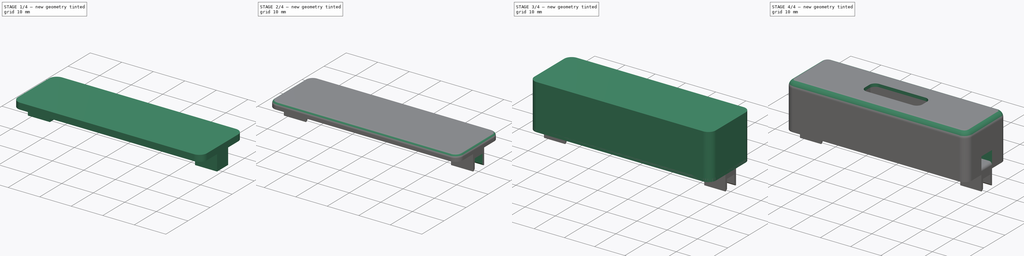
[diagram: build sequence overview — one tinted view per stage of 4, left to right]
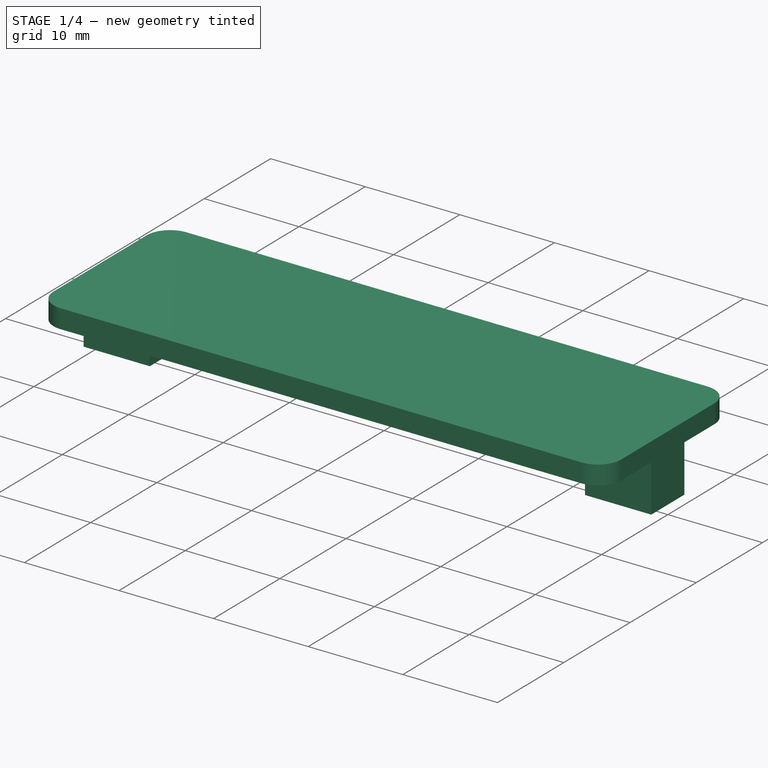
[diagram: stage 1 of 4 — iso view after this stage's code; geometry added in this stage tinted green]
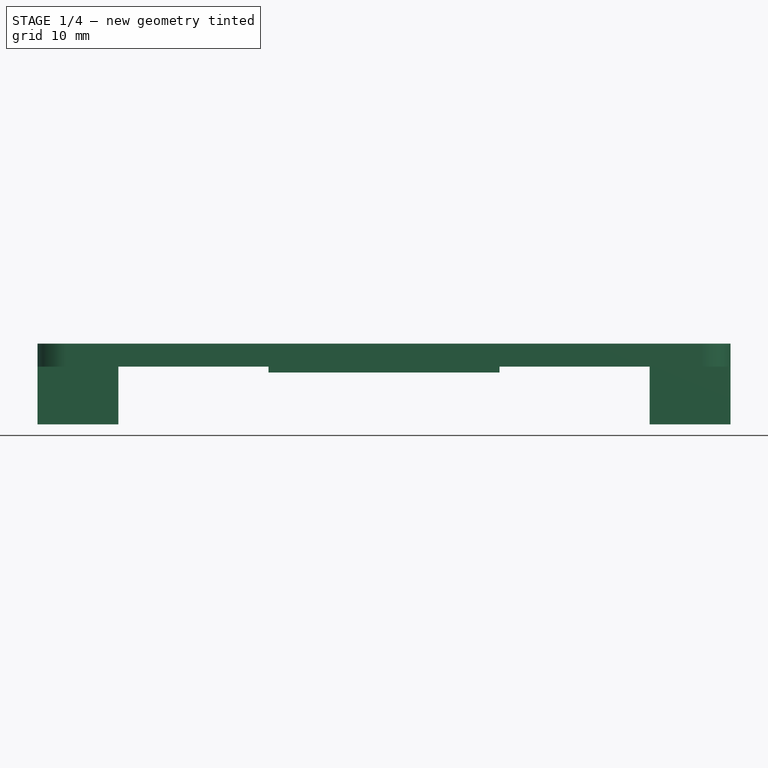
[diagram: stage 1 of 4 — front view after this stage's code; geometry added in this stage tinted green]
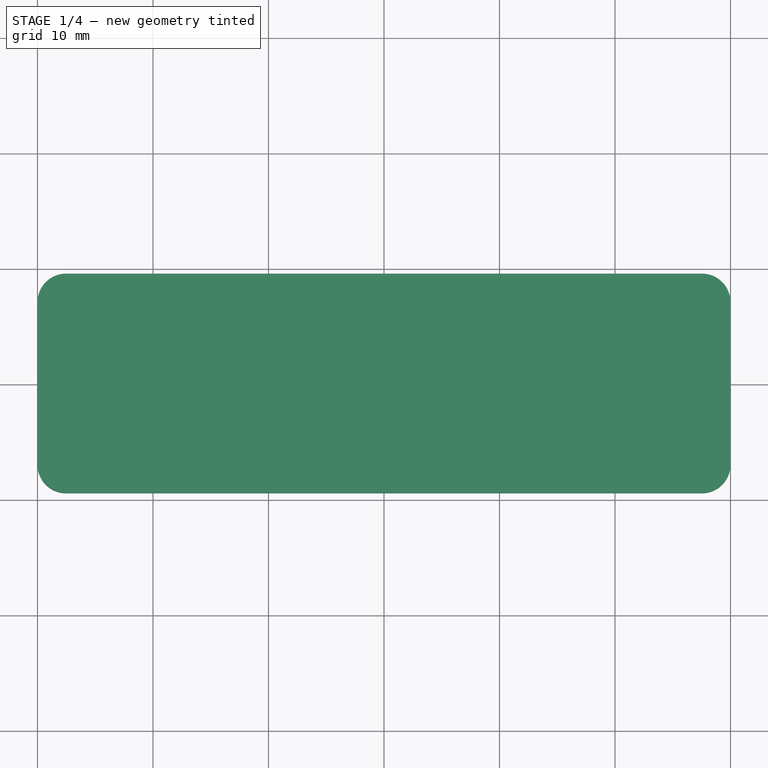
[diagram: stage 1 of 4 — top view after this stage's code; geometry added in this stage tinted green]
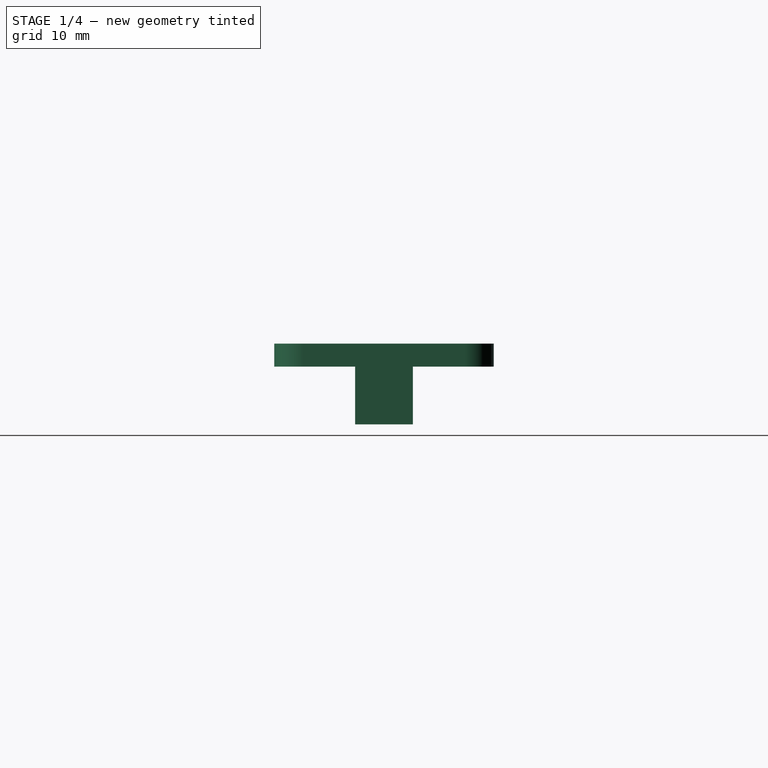
[diagram: stage 1 of 4 — right view after this stage's code; geometry added in this stage tinted green]
FCSTD DOCUMENT  (FreeCAD 0.21R32990 (Git))
Label: LAMP 2
License: All rights reserved
LicenseURL: https://en.wikipedia.org/wiki/All_rights_reserved
objects: Sketcher::SketchObject×8, PartDesign::Pad×4, PartDesign::Pocket×4, PartDesign::Fillet×2, PartDesign::Body×2, PartDesign::Plane×1, PartDesign::Chamfer×1
note: 33 computed .brp shape members not serialized (recipe doc carries the construction recipe); baked Part::Feature solids carry a one-line shape summary decoded from their .brp

FEATURE [Sketcher::SketchObject] Sketch004
  FullyConstrained = false
  MapMode = 5
  Support = -> [XY_Plane001]
  sketch-geometry (9):
    g0: LineSegment StartX=-30 StartY=7.02 StartZ=0 EndX=-30 EndY=-7.02 EndZ=0
    g1: LineSegment StartX=-27.52 StartY=-9.5 StartZ=0 EndX=27.52 EndY=-9.5 EndZ=0
    g2: LineSegment StartX=30 StartY=-7.02 StartZ=0 EndX=30 EndY=7.02 EndZ=0
    g3: LineSegment StartX=27.52 StartY=9.5 StartZ=0 EndX=-27.52 EndY=9.5 EndZ=0
    g4: GeomPoint X=-2.0261 Y=0 Z=0
    g5: ArcOfCircle CenterX=-27.52 CenterY=7.02 CenterZ=0 NormalX=0 NormalY=0 NormalZ=1 AngleXU=0 Radius=2.48 StartAngle=1.5708 EndAngle=3.14159
    g6: ArcOfCircle CenterX=-27.52 CenterY=-7.02 CenterZ=0 NormalX=0 NormalY=0 NormalZ=1 AngleXU=0 Radius=2.48 StartAngle=3.14159 EndAngle=4.71239
    g7: ArcOfCircle CenterX=27.52 CenterY=-7.02 CenterZ=0 NormalX=0 NormalY=0 NormalZ=1 AngleXU=0 Radius=2.48 StartAngle=4.71239 EndAngle=6.28319
    g8: ArcOfCircle CenterX=27.52 CenterY=7.02 CenterZ=0 NormalX=0 NormalY=0 NormalZ=1 AngleXU=0 Radius=2.48 StartAngle=0 EndAngle=1.5708
  constraints (20):
    c: Horizontal(g1)
    c: Horizontal(g3)
    c: Vertical(g0)
    c: Vertical(g2)
    c: PointOnObject(g4,g-1)
    c: Tangent(g3,g5) = -1.5708
    c: Tangent(g0,g5) = -1.5708
    c: Tangent(g0,g6) = -1.5708
    c: Tangent(g1,g6) = -1.5708
    c: Tangent(g1,g7) = -1.5708
    c: Tangent(g2,g7) = -1.5708
    c: Tangent(g3,g8) = -1.5708
    c: Tangent(g2,g8) = -1.5708
    c: Equal(g8,g7)
    c: Equal(g7,g6)
    c: Equal(g6,g5)
    c: DistanceY(g1,g3) = 19
    c: DistanceX(g0,g2) = 60
    c: Symmetric(g0,g2,g-1)
    c: Radius(g6) = 2.48
FEATURE [PartDesign::Pad] Pad001
  Direction = (0,0,1)
  Length = 2
  Length2 = 10
  Profile = -> Sketch004
  ReferenceAxis = -> Sketch004 [N_Axis]
  Type = 0
FEATURE [Sketcher::SketchObject] Sketch005
  FullyConstrained = true
  MapMode = 5
  Placement = pos=(0,0,0) rot=(1,0,0;3.14159rad)
  Support = -> [Pad001]
  sketch-geometry (8):
    g0: LineSegment StartX=-30 StartY=2.5 StartZ=0 EndX=-23 EndY=2.5 EndZ=0
    g1: LineSegment StartX=-23 StartY=2.5 StartZ=0 EndX=-23 EndY=-2.5 EndZ=0
    g2: LineSegment StartX=-23 StartY=-2.5 StartZ=0 EndX=-30 EndY=-2.5 EndZ=0
    g3: LineSegment StartX=-30 StartY=-2.5 StartZ=0 EndX=-30 EndY=2.5 EndZ=0
    g4: LineSegment StartX=23 StartY=2.5 StartZ=0 EndX=30 EndY=2.5 EndZ=0
    g5: LineSegment StartX=30 StartY=2.5 StartZ=0 EndX=30 EndY=-2.5 EndZ=0
    g6: LineSegment StartX=30 StartY=-2.5 StartZ=0 EndX=23 EndY=-2.5 EndZ=0
    g7: LineSegment StartX=23 StartY=-2.5 StartZ=0 EndX=23 EndY=2.5 EndZ=0
  constraints (22):
    c: Coincident(g0,g1)
    c: Coincident(g1,g2)
    c: Coincident(g2,g3)
    c: Coincident(g3,g0)
    c: Horizontal(g0)
    c: Horizontal(g2)
    c: Vertical(g1)
    c: Coincident(g4,g5)
    c: Coincident(g5,g6)
    c: Coincident(g6,g7)
    c: Coincident(g7,g4)
    c: Horizontal(g4)
    c: Horizontal(g6)
    c: Vertical(g7)
    c: DistanceX(g0,g-1) = 30
    c: DistanceX(g-1,g4) = 30
    c: DistanceY(g1,g1) = 5
    c: Symmetric(g0,g2,g-1)
    c: Symmetric(g4,g5,g-1)
    c: Equal(g7,g1)
    c: DistanceX(g0,g0) = 7
    c: Equal(g4,g0)
FEATURE [PartDesign::Pad] Pad002
  BaseFeature = -> Pad001
  Direction = (0,0,-1)
  Length = 5
  Length2 = 10
  Profile = -> Sketch005
  ReferenceAxis = -> Sketch005 [N_Axis]
  Type = 0
FEATURE [Sketcher::SketchObject] Sketch007
  FullyConstrained = true
  MapMode = 5
  Placement = pos=(0,0,0) rot=(1,0,0;3.14159rad)
  sketch-geometry (4):
    g0: LineSegment StartX=-10 StartY=2.25 StartZ=0 EndX=10 EndY=2.25 EndZ=0
    g1: LineSegment StartX=10 StartY=2.25 StartZ=0 EndX=10 EndY=-2.25 EndZ=0
    g2: LineSegment StartX=10 StartY=-2.25 StartZ=0 EndX=-10 EndY=-2.25 EndZ=0
    g3: LineSegment StartX=-10 StartY=-2.25 StartZ=0 EndX=-10 EndY=2.25 EndZ=0
  constraints (11):
    c: Coincident(g0,g1)
    c: Coincident(g1,g2)
    c: Coincident(g2,g3)
    c: Coincident(g3,g0)
    c: Horizontal(g0)
    c: Horizontal(g2)
    c: Vertical(g1)
    c: Vertical(g3)
    c: Symmetric(g0,g1,g-1)
    c: DistanceY(g3,g3) = 4.5
    c: DistanceX(g0,g0) = 20
FEATURE [PartDesign::Pad] Pad003
  BaseFeature = -> Pad002
  Direction = (0,0,-1)
  Length = 0.5
  Length2 = 10
  Profile = -> Sketch007
  ReferenceAxis = -> Sketch007 [N_Axis]
  Type = 0
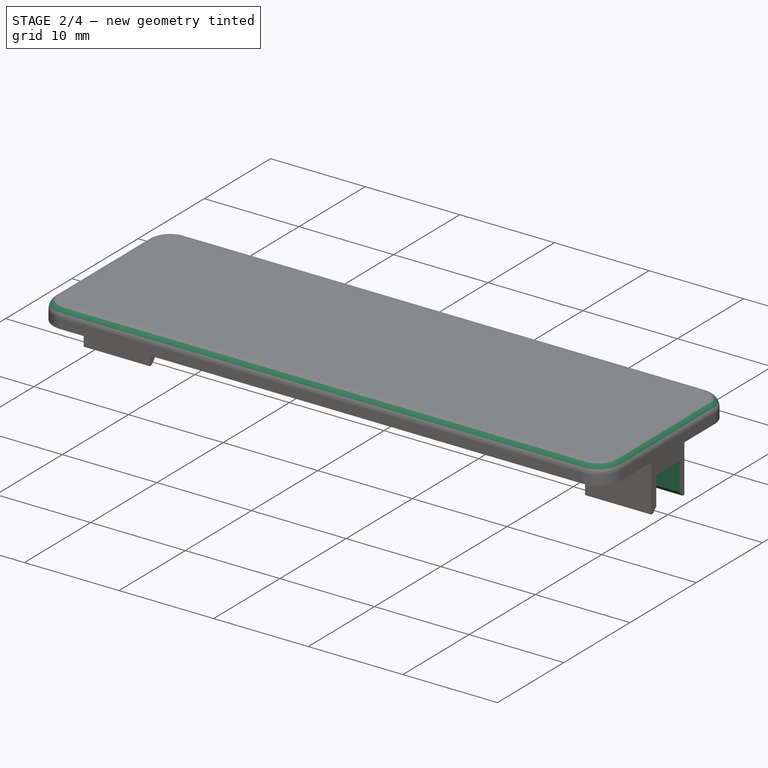
[diagram: stage 2 of 4 — iso view after this stage's code; geometry added in this stage tinted green]
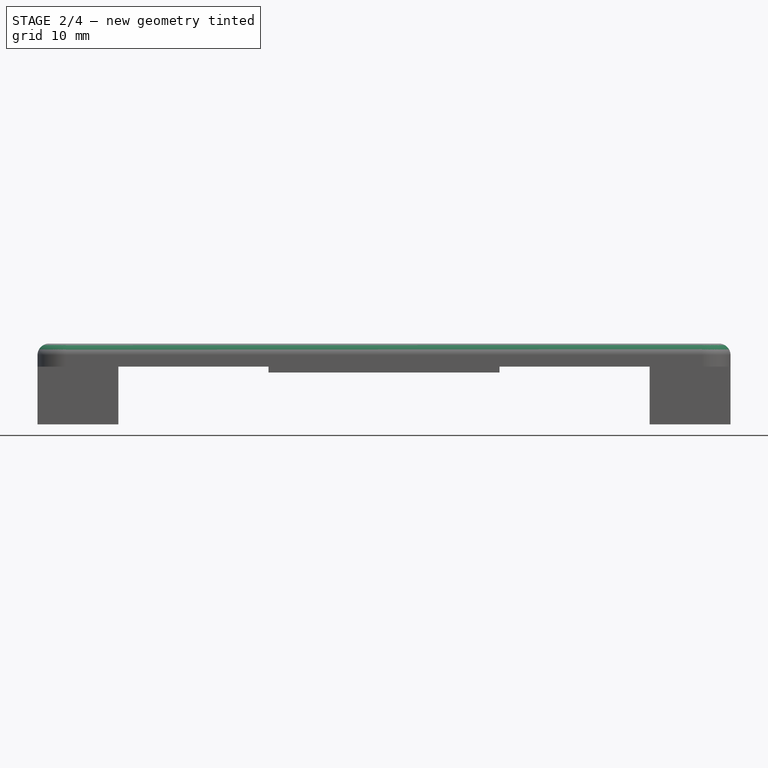
[diagram: stage 2 of 4 — front view after this stage's code; geometry added in this stage tinted green]
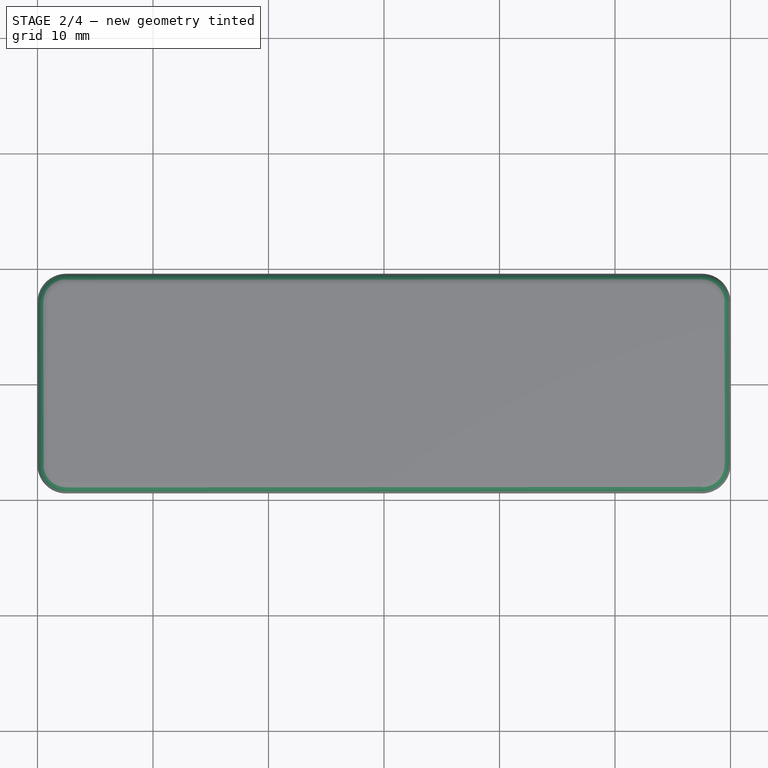
[diagram: stage 2 of 4 — top view after this stage's code; geometry added in this stage tinted green]
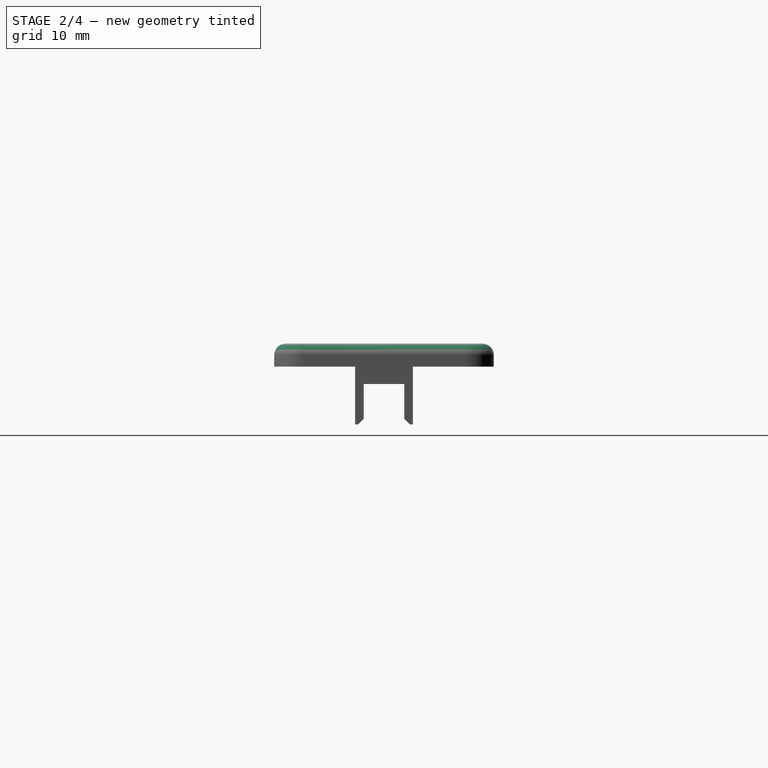
[diagram: stage 2 of 4 — right view after this stage's code; geometry added in this stage tinted green]
FEATURE [PartDesign::Body] Body
  Group = -> [Sketch,Pad,Sketch001,Pocket,Sketch002,Pocket001,Sketch003,Pocket002,Fillet]
  Origin = -> Origin
  Tip = -> Fillet
FEATURE [PartDesign::Fillet] Fillet001
  Base = -> Pad003 [Edge36,Edge32]
  BaseFeature = -> Pad003
  Radius = 1
  SupportTransform = false
  UseAllEdges = false
FEATURE [PartDesign::Plane] DatumPlane
  Length = 70.9545
  MapMode = 5
  Placement = pos=(0,0,-5) rot=(1,0,0;3.14159rad)
  ResizeMode = 0
  Support = -> [Fillet001]
  Width = 60.9545
FEATURE [Sketcher::SketchObject] Sketch008
  ExternalGeometry = -> [Fillet001]
  FullyConstrained = true
  MapMode = 5
  Placement = pos=(0,0,-5) rot=(1,0,0;3.14159rad)
  Support = -> [DatumPlane]
  sketch-geometry (8):
    g0: LineSegment StartX=-30 StartY=1.75 StartZ=0 EndX=-23 EndY=1.75 EndZ=0
    g1: LineSegment StartX=-23 StartY=1.75 StartZ=0 EndX=-23 EndY=-1.75 EndZ=0
    g2: LineSegment StartX=-23 StartY=-1.75 StartZ=0 EndX=-30 EndY=-1.75 EndZ=0
    g3: LineSegment StartX=-30 StartY=-1.75 StartZ=0 EndX=-30 EndY=1.75 EndZ=0
    g4: LineSegment StartX=23 StartY=1.75 StartZ=0 EndX=30 EndY=1.75 EndZ=0
    g5: LineSegment StartX=30 StartY=1.75 StartZ=0 EndX=30 EndY=-1.75 EndZ=0
    g6: LineSegment StartX=30 StartY=-1.75 StartZ=0 EndX=23 EndY=-1.75 EndZ=0
    g7: LineSegment StartX=23 StartY=-1.75 StartZ=0 EndX=23 EndY=1.75 EndZ=0
  constraints (22):
    c: Coincident(g0,g1)
    c: Coincident(g1,g2)
    c: Coincident(g2,g3)
    c: Coincident(g3,g0)
    c: Horizontal(g0)
    c: Horizontal(g2)
    c: Vertical(g1)
    c: PointOnObject(g1,g-4)
    c: DistanceY(g1,g1) = 3.5
    c: Symmetric(g0,g2,g-1)
    c: Coincident(g4,g5)
    c: Coincident(g5,g6)
    c: Coincident(g6,g7)
    c: Coincident(g7,g4)
    c: Horizontal(g4)
    c: Horizontal(g6)
    c: Vertical(g5)
    c: PointOnObject(g4,g-6)
    c: PointOnObject(g5,g-8)
    c: Equal(g1,g7)
    c: Symmetric(g4,g6,g-1)
    c: DistanceX(g0,g0) = 7
FEATURE [PartDesign::Pocket] Pocket003
  BaseFeature = -> Fillet001
  Direction = (0,0,1)
  Length = 3.5
  Length2 = 5
  Profile = -> Sketch008
  ReferenceAxis = -> Sketch008 [N_Axis]
  Type = 0
FEATURE [PartDesign::Chamfer] Chamfer
  Angle = 45
  Base = -> Pocket003 [Edge100,Edge99,Edge89,Edge86]
  BaseFeature = -> Pocket003
  ChamferType = 0
  FlipDirection = false
  Size = 0.5
  Size2 = 1
  SupportTransform = false
  UseAllEdges = false
FEATURE [PartDesign::Body] Body001
  Group = -> [Sketch004,Pad001,Sketch005,Pad002,Sketch007,Pad003,Fillet001,DatumPlane,Sketch008,Pocket003,Chamfer]
  Origin = -> Origin001
  Tip = -> Chamfer
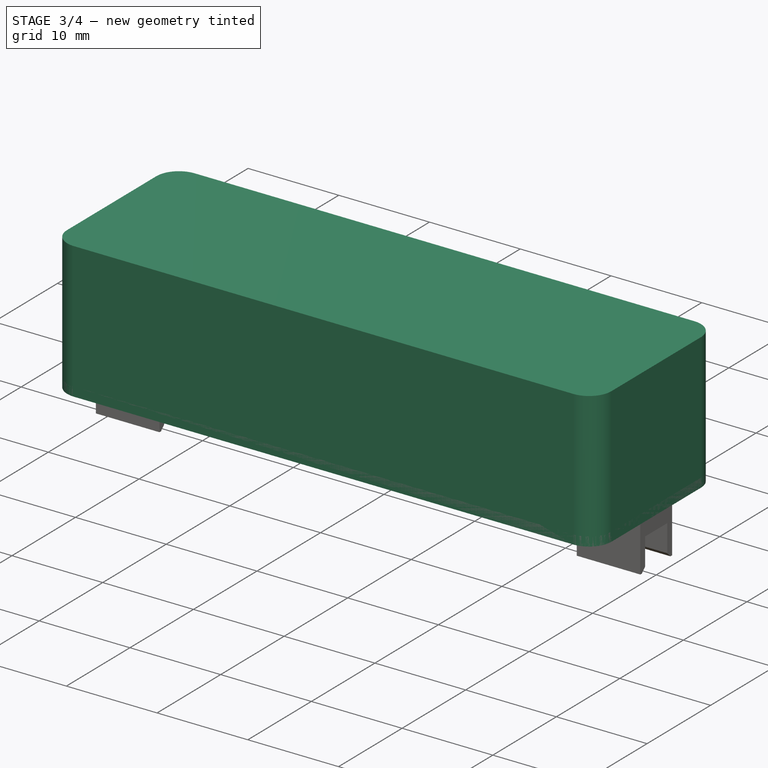
[diagram: stage 3 of 4 — iso view after this stage's code; geometry added in this stage tinted green]
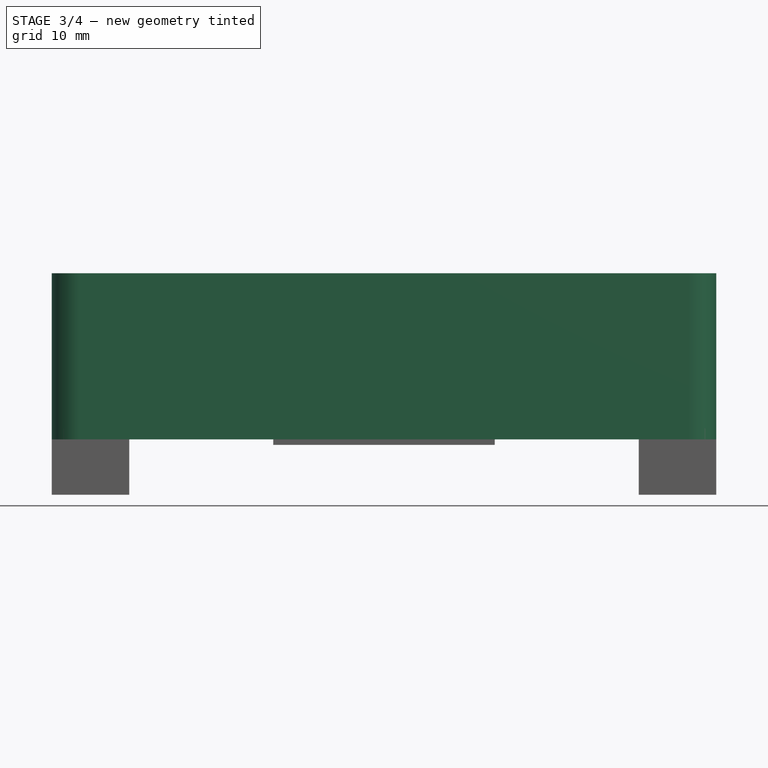
[diagram: stage 3 of 4 — front view after this stage's code; geometry added in this stage tinted green]
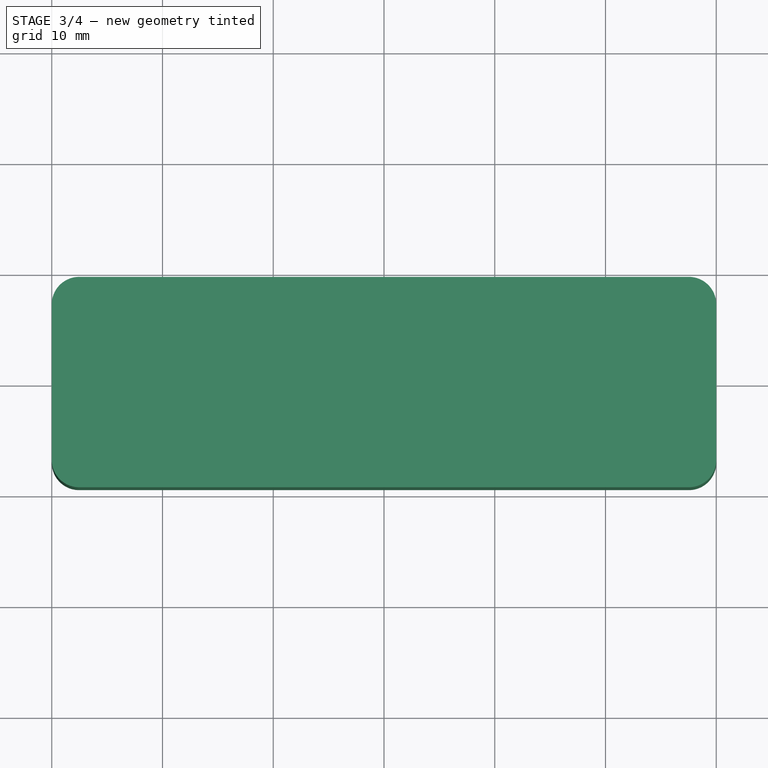
[diagram: stage 3 of 4 — top view after this stage's code; geometry added in this stage tinted green]
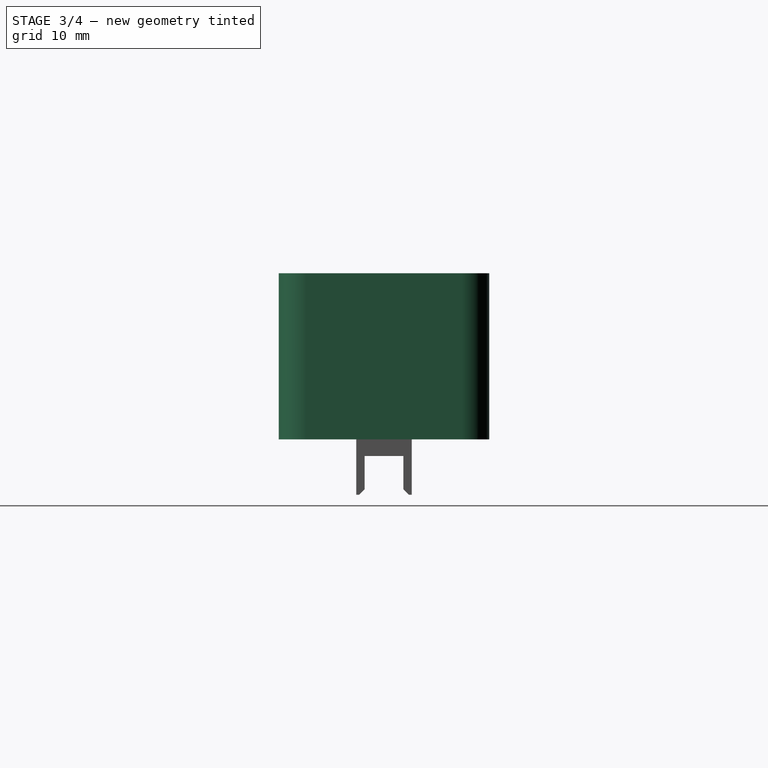
[diagram: stage 3 of 4 — right view after this stage's code; geometry added in this stage tinted green]
FEATURE [Sketcher::SketchObject] Sketch
  FullyConstrained = false
  MapMode = 5
  Support = -> [XY_Plane]
  sketch-geometry (9):
    g0: LineSegment StartX=-30 StartY=7.02 StartZ=0 EndX=-30 EndY=-7.02 EndZ=0
    g1: LineSegment StartX=-27.52 StartY=-9.5 StartZ=0 EndX=27.52 EndY=-9.5 EndZ=0
    g2: LineSegment StartX=30 StartY=-7.02 StartZ=0 EndX=30 EndY=7.02 EndZ=0
    g3: LineSegment StartX=27.52 StartY=9.5 StartZ=0 EndX=-27.52 EndY=9.5 EndZ=0
    g4: GeomPoint X=-2.0261 Y=0 Z=0
    g5: ArcOfCircle CenterX=-27.52 CenterY=7.02 CenterZ=0 NormalX=0 NormalY=0 NormalZ=1 AngleXU=0 Radius=2.48 StartAngle=1.5708 EndAngle=3.14159
    g6: ArcOfCircle CenterX=-27.52 CenterY=-7.02 CenterZ=0 NormalX=0 NormalY=0 NormalZ=1 AngleXU=0 Radius=2.48 StartAngle=3.14159 EndAngle=4.71239
    g7: ArcOfCircle CenterX=27.52 CenterY=-7.02 CenterZ=0 NormalX=0 NormalY=0 NormalZ=1 AngleXU=0 Radius=2.48 StartAngle=4.71239 EndAngle=6.28319
    g8: ArcOfCircle CenterX=27.52 CenterY=7.02 CenterZ=0 NormalX=0 NormalY=0 NormalZ=1 AngleXU=0 Radius=2.48 StartAngle=0 EndAngle=1.5708
  constraints (20):
    c: Horizontal(g1)
    c: Horizontal(g3)
    c: Vertical(g0)
    c: Vertical(g2)
    c: PointOnObject(g4,g-1)
    c: Tangent(g3,g5) = -1.5708
    c: Tangent(g0,g5) = -1.5708
    c: Tangent(g0,g6) = -1.5708
    c: Tangent(g1,g6) = -1.5708
    c: Tangent(g1,g7) = -1.5708
    c: Tangent(g2,g7) = -1.5708
    c: Tangent(g3,g8) = -1.5708
    c: Tangent(g2,g8) = -1.5708
    c: Equal(g8,g7)
    c: Equal(g7,g6)
    c: Equal(g6,g5)
    c: DistanceY(g1,g3) = 19
    c: DistanceX(g0,g2) = 60
    c: Symmetric(g0,g2,g-1)
    c: Radius(g6) = 2.48
FEATURE [PartDesign::Pad] Pad
  Direction = (0,0,1)
  Length = 15
  Length2 = 10
  Profile = -> Sketch
  ReferenceAxis = -> Sketch [N_Axis]
  Type = 0
FEATURE [Sketcher::SketchObject] Sketch001
  FullyConstrained = true
  MapMode = 5
  Placement = pos=(0,0,0) rot=(1,0,0;3.14159rad)
  Support = -> [Pad]
  sketch-geometry (5):
    g0: LineSegment StartX=-11.675 StartY=4.6 StartZ=0 EndX=-11.675 EndY=-4.6 EndZ=0
    g1: LineSegment StartX=-11.675 StartY=-4.6 StartZ=0 EndX=11.675 EndY=-4.6 EndZ=0
    g2: LineSegment StartX=11.675 StartY=-4.6 StartZ=0 EndX=11.675 EndY=4.6 EndZ=0
    g3: LineSegment StartX=11.675 StartY=4.6 StartZ=0 EndX=-11.675 EndY=4.6 EndZ=0
    g4: GeomPoint X=0 Y=0 Z=0
  constraints (12):
    c: Coincident(g0,g1)
    c: Coincident(g1,g2)
    c: Coincident(g2,g3)
    c: Coincident(g3,g0)
    c: Horizontal(g1)
    c: Horizontal(g3)
    c: Vertical(g0)
    c: Vertical(g2)
    c: Symmetric(g1,g0,g4)
    c: Coincident(g4,g-1)
    c: DistanceX(g1,g1) = 23.35
    c: DistanceY(g0,g0) = 9.2
FEATURE [PartDesign::Pocket] Pocket
  BaseFeature = -> Pad
  Direction = (0,0,1)
  Length = 14
  Length2 = 5
  Profile = -> Sketch001
  ReferenceAxis = -> Sketch001 [N_Axis]
  Type = 0
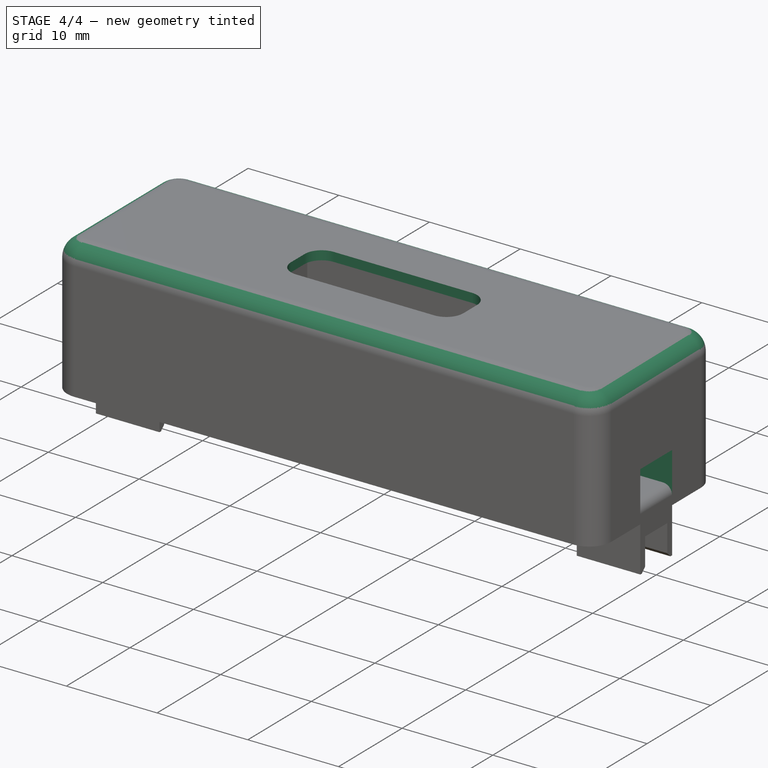
[diagram: stage 4 of 4 — iso view after this stage's code; geometry added in this stage tinted green]
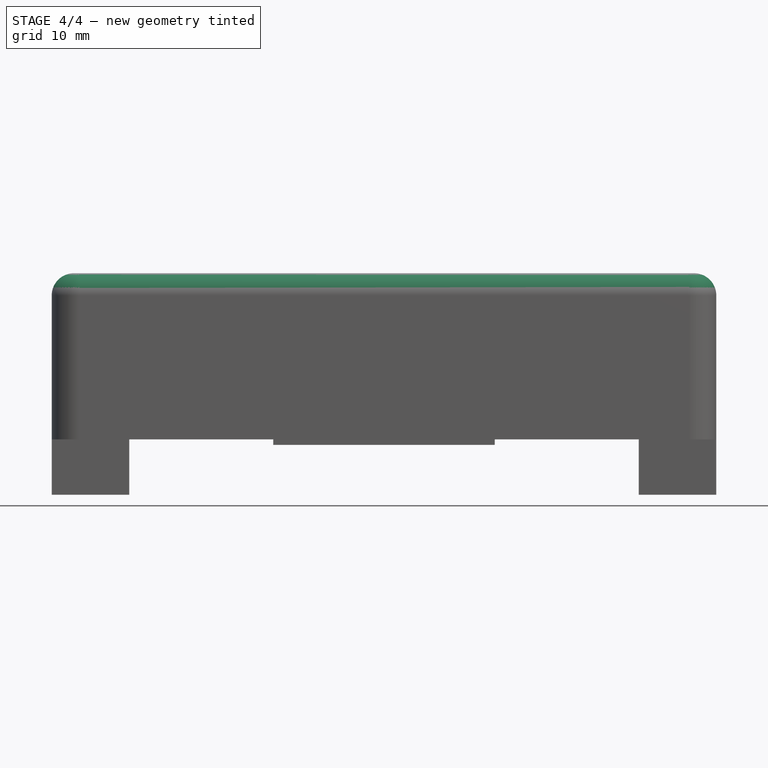
[diagram: stage 4 of 4 — front view after this stage's code; geometry added in this stage tinted green]
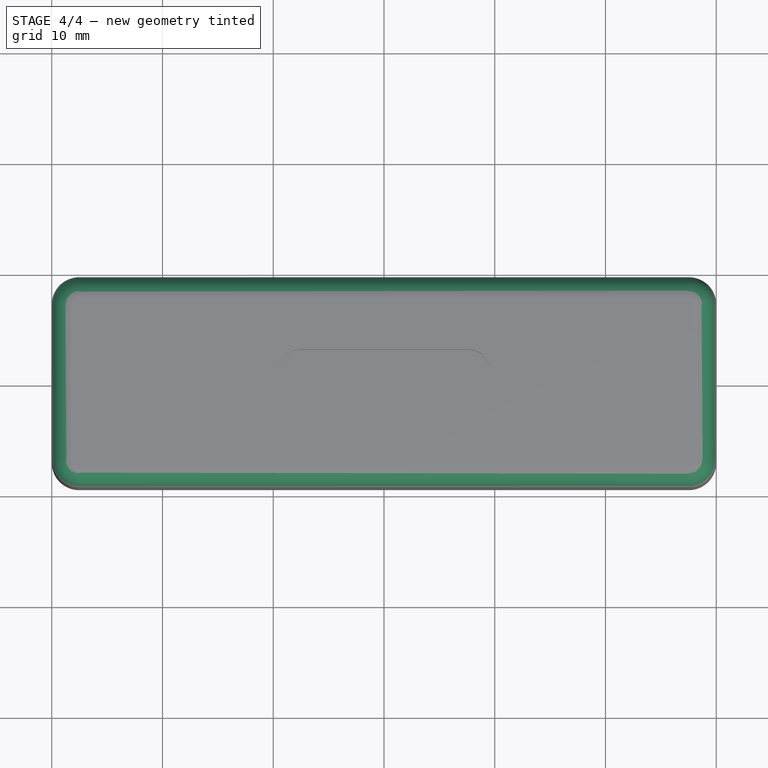
[diagram: stage 4 of 4 — top view after this stage's code; geometry added in this stage tinted green]
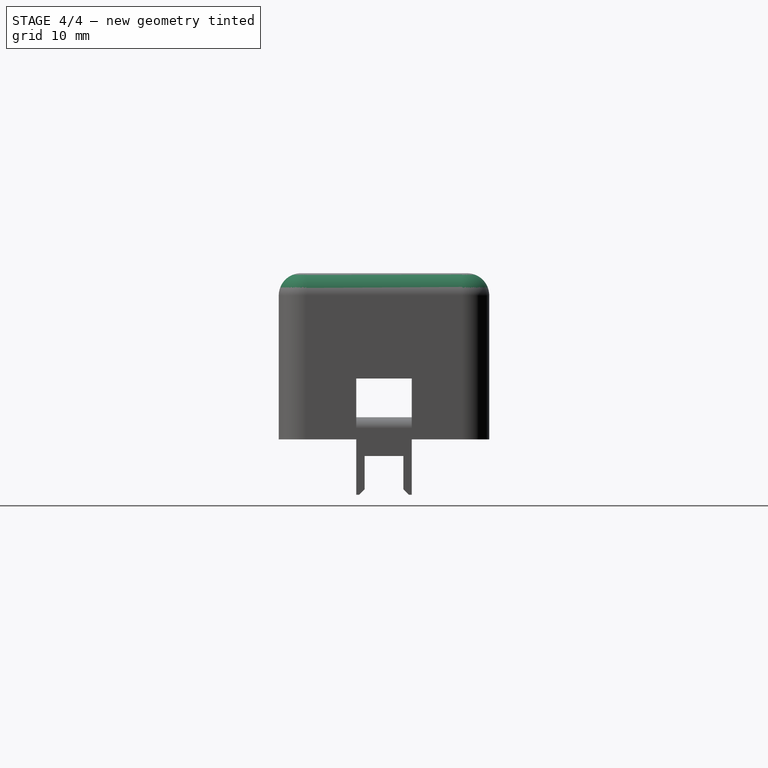
[diagram: stage 4 of 4 — right view after this stage's code; geometry added in this stage tinted green]
FEATURE [Sketcher::SketchObject] Sketch002
  FullyConstrained = false
  MapMode = 5
  Placement = pos=(0,0,14) rot=(1,0,0;3.14159rad)
  Support = -> [Pocket]
  sketch-geometry (9):
    g0: LineSegment StartX=-9.5 StartY=1.06261 StartZ=0 EndX=-9.5 EndY=-1.06261 EndZ=0
    g1: LineSegment StartX=-7.61261 StartY=-2.95 StartZ=0 EndX=7.61261 EndY=-2.95 EndZ=0
    g2: LineSegment StartX=9.5 StartY=-1.06261 StartZ=0 EndX=9.5 EndY=1.06261 EndZ=0
    g3: LineSegment StartX=7.61261 StartY=2.95 StartZ=0 EndX=-7.61261 EndY=2.95 EndZ=0
    g4: GeomPoint X=0 Y=0 Z=0
    g5: ArcOfCircle CenterX=-7.61261 CenterY=1.06261 CenterZ=0 NormalX=0 NormalY=0 NormalZ=1 AngleXU=0 Radius=1.88739 StartAngle=1.5708 EndAngle=3.14159
    g6: ArcOfCircle CenterX=-7.61261 CenterY=-1.06261 CenterZ=0 NormalX=0 NormalY=0 NormalZ=1 AngleXU=0 Radius=1.88739 StartAngle=3.14159 EndAngle=4.71239
    g7: ArcOfCircle CenterX=7.61261 CenterY=-1.06261 CenterZ=0 NormalX=0 NormalY=0 NormalZ=1 AngleXU=0 Radius=1.88739 StartAngle=4.71239 EndAngle=6.28319
    g8: ArcOfCircle CenterX=7.61261 CenterY=1.06261 CenterZ=0 NormalX=0 NormalY=0 NormalZ=1 AngleXU=0 Radius=1.88739 StartAngle=-9.8e-15 EndAngle=1.5708
  constraints (19):
    c: Horizontal(g1)
    c: Horizontal(g3)
    c: Vertical(g0)
    c: Vertical(g2)
    c: Coincident(g4,g-1)
    c: Tangent(g3,g5) = -1.5708
    c: Tangent(g0,g5) = -1.5708
    c: Tangent(g0,g6) = -1.5708
    c: Tangent(g1,g6) = -1.5708
    c: Tangent(g1,g7) = -1.5708
    c: Tangent(g2,g7) = -1.5708
    c: Tangent(g3,g8) = -1.5708
    c: Tangent(g2,g8) = -1.5708
    c: Equal(g8,g7)
    c: Equal(g7,g6)
    c: Equal(g6,g5)
    c: Symmetric(g3,g1,g4)
    c: DistanceX(g0,g2) = 19
    c: DistanceY(g1,g3) = 5.9
FEATURE [PartDesign::Pocket] Pocket001
  BaseFeature = -> Pocket
  Direction = (0,0,1)
  Length = 5
  Length2 = 5
  Profile = -> Sketch002
  ReferenceAxis = -> Sketch002 [N_Axis]
  Type = 1
FEATURE [Sketcher::SketchObject] Sketch003
  FullyConstrained = true
  MapMode = 5
  Placement = pos=(0,0,0) rot=(1,0,0;3.14159rad)
  Support = -> [Pocket001]
  sketch-geometry (8):
    g0: LineSegment StartX=-30.1 StartY=2.5 StartZ=0 EndX=-11.5 EndY=2.5 EndZ=0
    g1: LineSegment StartX=-11.5 StartY=2.5 StartZ=0 EndX=-11.5 EndY=-2.5 EndZ=0
    g2: LineSegment StartX=-11.5 StartY=-2.5 StartZ=0 EndX=-30.1 EndY=-2.5 EndZ=0
    g3: LineSegment StartX=-30.1 StartY=-2.5 StartZ=0 EndX=-30.1 EndY=2.5 EndZ=0
    g4: LineSegment StartX=11.5 StartY=2.5 StartZ=0 EndX=30.1 EndY=2.5 EndZ=0
    g5: LineSegment StartX=30.1 StartY=2.5 StartZ=0 EndX=30.1 EndY=-2.5 EndZ=0
    g6: LineSegment StartX=30.1 StartY=-2.5 StartZ=0 EndX=11.5 EndY=-2.5 EndZ=0
    g7: LineSegment StartX=11.5 StartY=-2.5 StartZ=0 EndX=11.5 EndY=2.5 EndZ=0
  constraints (22):
    c: Coincident(g0,g1)
    c: Coincident(g1,g2)
    c: Coincident(g2,g3)
    c: Coincident(g3,g0)
    c: Horizontal(g0)
    c: Horizontal(g2)
    c: Vertical(g1)
    c: Symmetric(g0,g2,g-1)
    c: DistanceY(g3,g3) = 5
    c: Coincident(g4,g5)
    c: Coincident(g5,g6)
    c: Coincident(g6,g7)
    c: Coincident(g7,g4)
    c: Horizontal(g4)
    c: Horizontal(g6)
    c: Vertical(g7)
    c: Symmetric(g4,g5,g-1)
    c: DistanceX(g2,g2) = 18.6
    c: DistanceX(g6,g6) = 18.6
    c: DistanceX(g1,g-1) = 11.5
    c: DistanceX(g-1,g6) = 11.5
    c: Equal(g7,g3)
FEATURE [PartDesign::Pocket] Pocket002
  BaseFeature = -> Pocket001
  Direction = (0,0,1)
  Length = 5.5
  Length2 = 5
  Profile = -> Sketch003
  ReferenceAxis = -> Sketch003 [N_Axis]
  Type = 0
FEATURE [PartDesign::Fillet] Fillet
  Base = -> Pocket002 [Edge36,Edge35]
  BaseFeature = -> Pocket002
  Radius = 2
  SupportTransform = false
  UseAllEdges = false
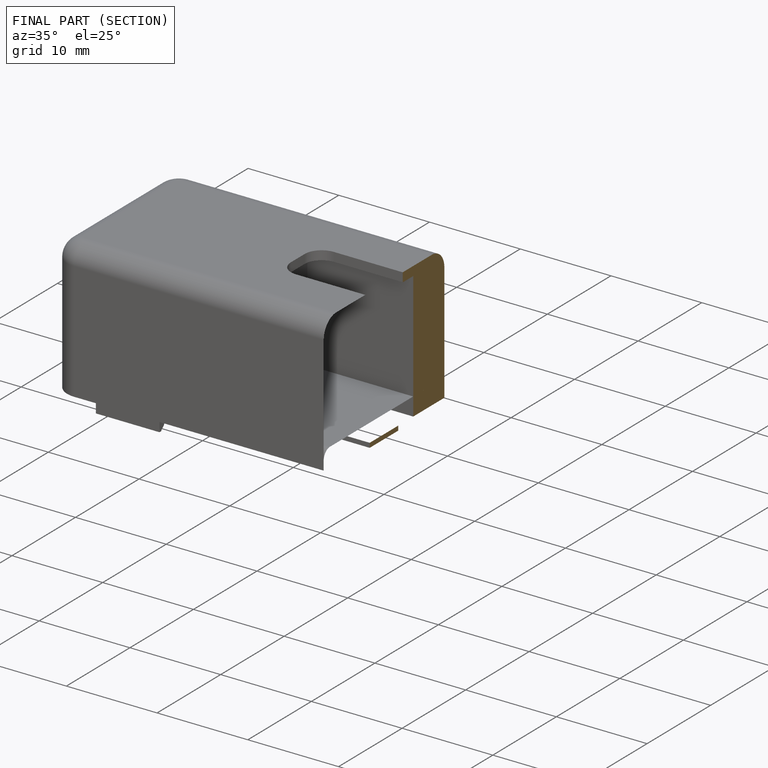
[diagram: finished part — half-section view (interior)]
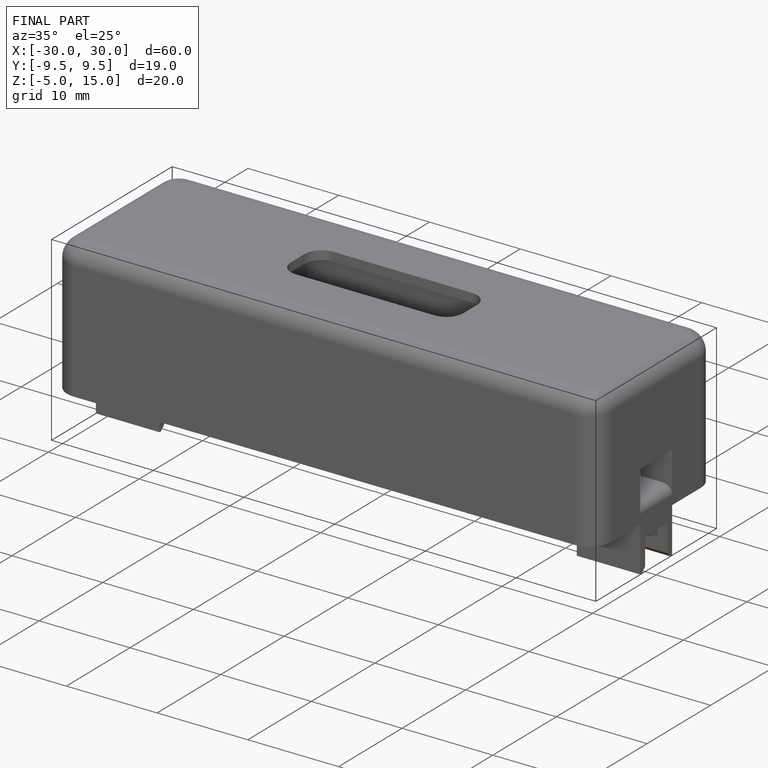
[diagram: finished part — iso view with bounding-box wireframe]
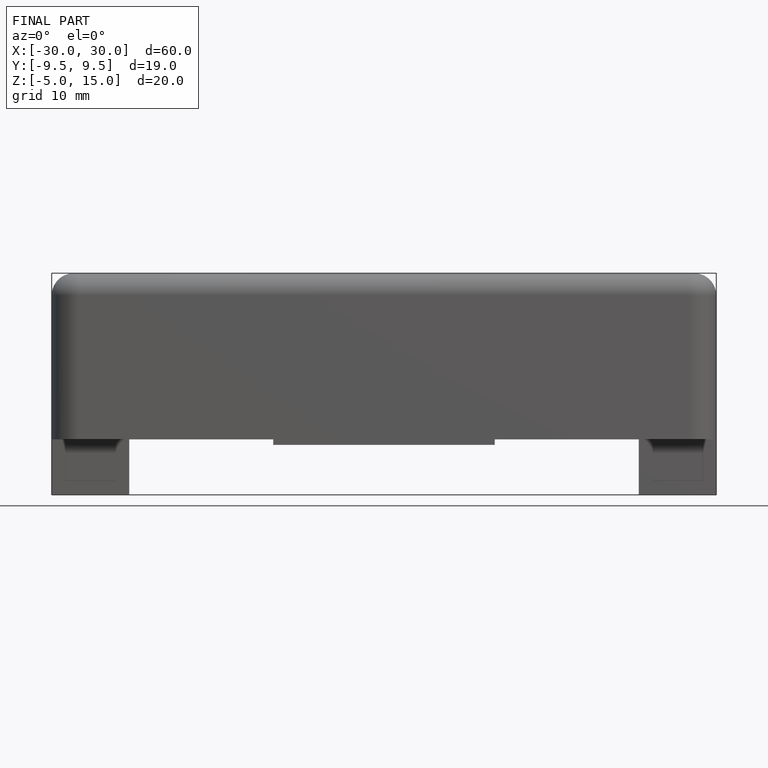
[diagram: finished part — front view with bounding-box wireframe]
